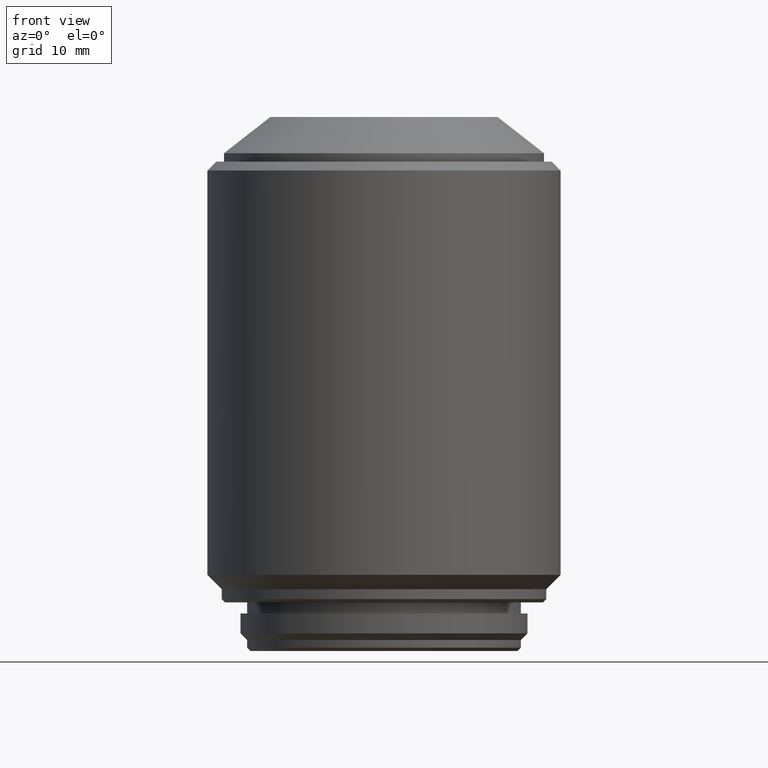
[diagram: clean part render]
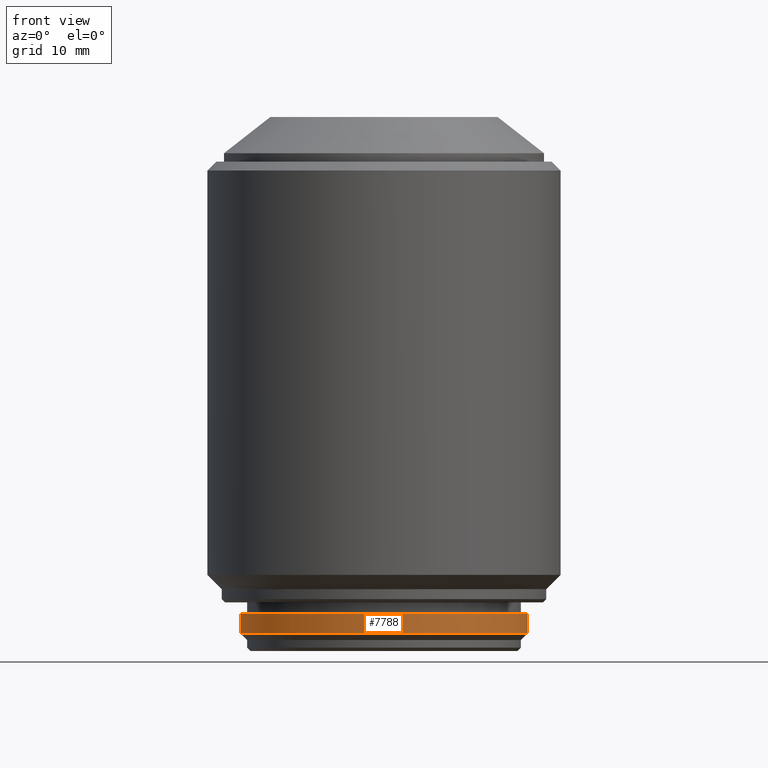
[diagram: same view with one face highlighted and labeled with its STEP entity id]
A machine part, front view. The second image highlights one B-rep face of the part: STEP entity #7788.
In plain terms, the highlighted cylindrical surface (partial cylindrical patch) has radius 13 mm, axis along (0, 0, -1).
Its self-contained STEP definition (entity closure, byte-faithful):
#340 = CARTESIAN_POINT ( 'NONE',  ( 0.000000000000000000, 0.000000000000000000, 3.399999999999999911 ) ) ;
#456 = EDGE_LOOP ( 'NONE', ( #13576, #23241, #22628, #3307 ) ) ;
#1095 = DIRECTION ( 'NONE',  ( 0.000000000000000000, 0.000000000000000000, -1.000000000000000000 ) ) ;
#1622 = DIRECTION ( 'NONE',  ( 0.000000000000000000, 0.000000000000000000, -1.000000000000000000 ) ) ;
#2595 = LINE ( 'NONE', #6542, #14740 ) ;
#3074 = DIRECTION ( 'NONE',  ( -1.000000000000000000, 0.000000000000000000, 0.000000000000000000 ) ) ;
#3307 = ORIENTED_EDGE ( 'NONE', *, *, #11181, .T. ) ;
#3317 = EDGE_CURVE ( 'NONE', #5801, #5963, #2595, .T. ) ;
#5178 = CARTESIAN_POINT ( 'NONE',  ( 13.00000000000000000, 0.000000000000000000, 1.600000000000000089 ) ) ;
#5189 = CYLINDRICAL_SURFACE ( 'NONE', #25036, 13.00000000000000000 ) ;
#5801 = VERTEX_POINT ( 'NONE', #6046 ) ;
#5835 = LINE ( 'NONE', #16652, #9943 ) ;
#5963 = VERTEX_POINT ( 'NONE', #5178 ) ;
#6046 = CARTESIAN_POINT ( 'NONE',  ( 13.00000000000000000, 1.592040838891559095E-15, 3.399999999999999911 ) ) ;
#6542 = CARTESIAN_POINT ( 'NONE',  ( 13.00000000000000000, 1.592040838891559095E-15, 4.400000000000000355 ) ) ;
#7513 = CARTESIAN_POINT ( 'NONE',  ( -13.00000000000000000, 0.000000000000000000, 3.399999999999999911 ) ) ;
#7671 = CARTESIAN_POINT ( 'NONE',  ( 0.000000000000000000, 0.000000000000000000, 1.600000000000000089 ) ) ;
#7788 = ADVANCED_FACE ( 'NONE', ( #9121 ), #5189, .T. ) ;
#8917 = DIRECTION ( 'NONE',  ( 0.000000000000000000, 0.000000000000000000, 1.000000000000000000 ) ) ;
#9121 = FACE_OUTER_BOUND ( 'NONE', #456, .T. ) ;
#9943 = VECTOR ( 'NONE', #1622, 1000.000000000000000 ) ;
#10850 = AXIS2_PLACEMENT_3D ( 'NONE', #7671, #16233, #24959 ) ;
#10886 = DIRECTION ( 'NONE',  ( -1.000000000000000000, 0.000000000000000000, 0.000000000000000000 ) ) ;
#11181 = EDGE_CURVE ( 'NONE', #20617, #5963, #20261, .T. ) ;
#11773 = CARTESIAN_POINT ( 'NONE',  ( 0.000000000000000000, 0.000000000000000000, 4.400000000000000355 ) ) ;
#11781 = CARTESIAN_POINT ( 'NONE',  ( -13.00000000000000000, 1.592040838891559095E-15, 1.600000000000000089 ) ) ;
#12189 = EDGE_CURVE ( 'NONE', #24325, #20617, #5835, .T. ) ;
#12529 = CIRCLE ( 'NONE', #19706, 13.00000000000000000 ) ;
#13576 = ORIENTED_EDGE ( 'NONE', *, *, #3317, .F. ) ;
#14740 = VECTOR ( 'NONE', #17341, 1000.000000000000000 ) ;
#16233 = DIRECTION ( 'NONE',  ( 0.000000000000000000, 0.000000000000000000, 1.000000000000000000 ) ) ;
#16652 = CARTESIAN_POINT ( 'NONE',  ( -13.00000000000000000, 0.000000000000000000, 4.400000000000000355 ) ) ;
#17341 = DIRECTION ( 'NONE',  ( 0.000000000000000000, 0.000000000000000000, -1.000000000000000000 ) ) ;
#19584 = EDGE_CURVE ( 'NONE', #24325, #5801, #12529, .T. ) ;
#19706 = AXIS2_PLACEMENT_3D ( 'NONE', #340, #8917, #10886 ) ;
#20261 = CIRCLE ( 'NONE', #10850, 13.00000000000000000 ) ;
#20617 = VERTEX_POINT ( 'NONE', #11781 ) ;
#22628 = ORIENTED_EDGE ( 'NONE', *, *, #12189, .T. ) ;
#23241 = ORIENTED_EDGE ( 'NONE', *, *, #19584, .F. ) ;
#24325 = VERTEX_POINT ( 'NONE', #7513 ) ;
#24959 = DIRECTION ( 'NONE',  ( -1.000000000000000000, 0.000000000000000000, 0.000000000000000000 ) ) ;
#25036 = AXIS2_PLACEMENT_3D ( 'NONE', #11773, #1095, #3074 ) ;